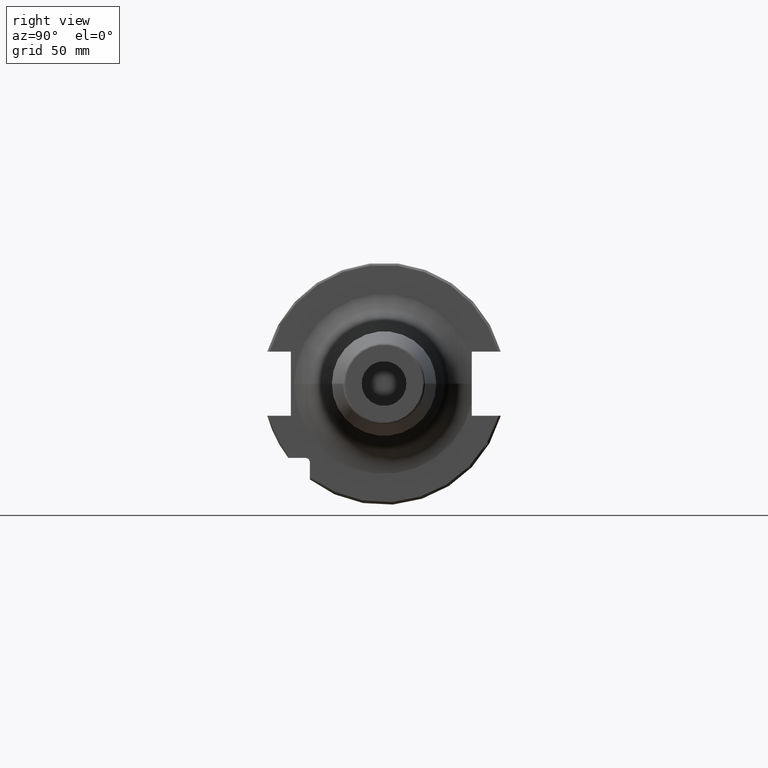
[diagram: clean part render]
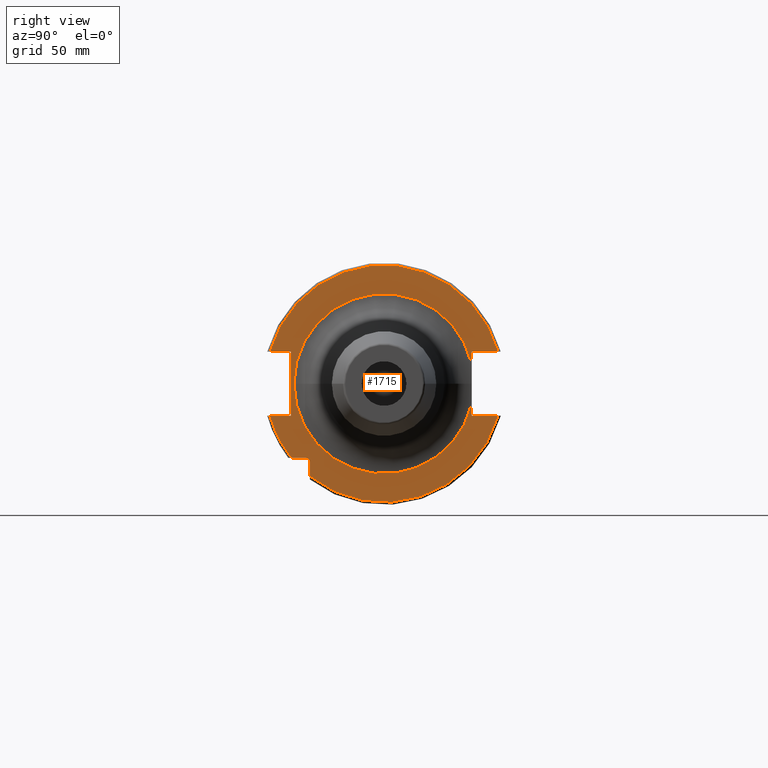
[diagram: same view with one face highlighted and labeled with its STEP entity id]
A machine part, right view. The second image highlights one B-rep face of the part: STEP entity #1715.
In plain terms, the highlighted planar face has unit normal (1, 0, 0).
Its self-contained STEP definition (entity closure, byte-faithful):
#126=CARTESIAN_POINT('',(1.905E1,0.E0,0.E0));
#127=DIRECTION('',(1.E0,0.E0,0.E0));
#128=DIRECTION('',(0.E0,-1.E0,0.E0));
#129=AXIS2_PLACEMENT_3D('',#126,#127,#128);
#131=DIRECTION('',(0.E0,8.971791458301E-6,-9.999999999598E-1));
#132=VECTOR('',#131,4.752175134589E0);
#133=CARTESIAN_POINT('',(1.905E1,3.529995736448E1,-8.147824865602E0));
#134=LINE('',#133,#132);
#135=DIRECTION('',(0.E0,-1.E0,0.E0));
#136=VECTOR('',#135,1.066149373389E1);
#137=CARTESIAN_POINT('',(1.905E1,4.596149373389E1,-1.29E1));
#138=LINE('',#137,#136);
#139=DIRECTION('',(0.E0,0.E0,1.E0));
#140=VECTOR('',#139,5.653810627237E0);
#141=CARTESIAN_POINT('',(1.905E1,-2.985E1,-3.725381062724E1));
#142=LINE('',#141,#140);
#143=DIRECTION('',(0.E0,-1.E0,0.E0));
#144=VECTOR('',#143,5.653810627237E0);
#145=CARTESIAN_POINT('',(1.905E1,-3.16E1,-2.985E1));
#146=LINE('',#145,#144);
#147=DIRECTION('',(0.E0,1.E0,0.E0));
#148=VECTOR('',#147,8.461493733886E0);
#149=CARTESIAN_POINT('',(1.905E1,-4.596149373389E1,-1.29E1));
#150=LINE('',#149,#148);
#151=DIRECTION('',(0.E0,0.E0,1.E0));
#152=VECTOR('',#151,2.58E1);
#153=CARTESIAN_POINT('',(1.905E1,-3.75E1,-1.29E1));
#154=LINE('',#153,#152);
#155=DIRECTION('',(0.E0,1.E0,0.E0));
#156=VECTOR('',#155,8.461493733886E0);
#157=CARTESIAN_POINT('',(1.905E1,-4.596149373389E1,1.29E1));
#158=LINE('',#157,#156);
#159=DIRECTION('',(0.E0,-1.E0,0.E0));
#160=VECTOR('',#159,1.066149373389E1);
#161=CARTESIAN_POINT('',(1.905E1,4.596149373389E1,1.29E1));
#162=LINE('',#161,#160);
#163=DIRECTION('',(0.E0,-9.216076785689E-6,-9.999999999575E-1));
#164=VECTOR('',#163,4.752066563707E0);
#165=CARTESIAN_POINT('',(1.905E1,3.53E1,1.29E1));
#166=LINE('',#165,#164);
#167=CARTESIAN_POINT('',(1.905E1,0.E0,0.E0));
#168=DIRECTION('',(1.E0,0.E0,0.E0));
#169=DIRECTION('',(0.E0,9.743845182936E-1,2.248884401426E-1));
#170=AXIS2_PLACEMENT_3D('',#167,#168,#169);
#609=CARTESIAN_POINT('',(1.905E1,-3.16E1,-3.16E1));
#610=DIRECTION('',(-1.E0,0.E0,0.E0));
#611=DIRECTION('',(0.E0,0.E0,1.E0));
#612=AXIS2_PLACEMENT_3D('',#609,#610,#611);
#644=CARTESIAN_POINT('',(1.905E1,0.E0,0.E0));
#645=DIRECTION('',(-1.E0,0.E0,0.E0));
#646=DIRECTION('',(0.E0,9.627964123359E-1,-2.702278083268E-1));
#647=AXIS2_PLACEMENT_3D('',#644,#645,#646);
#660=CARTESIAN_POINT('',(1.905E1,0.E0,0.E0));
#661=DIRECTION('',(-1.E0,0.E0,0.E0));
#662=DIRECTION('',(0.E0,-7.803888060170E-1,-6.252945797329E-1));
#663=AXIS2_PLACEMENT_3D('',#660,#661,#662);
#674=CARTESIAN_POINT('',(1.905E1,-3.725381062724E1,-2.985E1));
#1022=CARTESIAN_POINT('',(1.905E1,0.E0,0.E0));
#1023=DIRECTION('',(1.E0,0.E0,0.E0));
#1024=DIRECTION('',(0.E0,9.627964123359E-1,2.702278083268E-1));
#1025=AXIS2_PLACEMENT_3D('',#1022,#1023,#1024);
#1366=CARTESIAN_POINT('',(1.905E1,4.596149373389E1,1.29E1));
#1367=CARTESIAN_POINT('',(1.905E1,3.53E1,1.29E1));
#1368=VERTEX_POINT('',#1366);
#1369=VERTEX_POINT('',#1367);
#1370=CARTESIAN_POINT('',(1.905E1,4.596149373389E1,-1.29E1));
#1371=CARTESIAN_POINT('',(1.905E1,3.53E1,-1.29E1));
#1372=VERTEX_POINT('',#1370);
#1373=VERTEX_POINT('',#1371);
#1374=CARTESIAN_POINT('',(1.905E1,-4.596149373389E1,-1.29E1));
#1375=CARTESIAN_POINT('',(1.905E1,-3.75E1,-1.29E1));
#1376=VERTEX_POINT('',#1374);
#1377=VERTEX_POINT('',#1375);
#1378=CARTESIAN_POINT('',(1.905E1,-3.75E1,1.29E1));
#1379=VERTEX_POINT('',#1378);
#1380=CARTESIAN_POINT('',(1.905E1,-4.596149373389E1,1.29E1));
#1381=VERTEX_POINT('',#1380);
#1435=CARTESIAN_POINT('',(1.905E1,-2.985E1,-3.725381062724E1));
#1436=VERTEX_POINT('',#1435);
#1443=CARTESIAN_POINT('',(1.905E1,-3.16E1,-2.985E1));
#1444=CARTESIAN_POINT('',(1.905E1,-2.985E1,-3.16E1));
#1445=VERTEX_POINT('',#1443);
#1446=VERTEX_POINT('',#1444);
#1468=VERTEX_POINT('',#674);
#1490=CARTESIAN_POINT('',(1.905E1,-3.622816150469E1,-7.857457697077E-14));
#1491=CARTESIAN_POINT('',(1.905E1,3.530022776518E1,-8.146999799682E0));
#1492=VERTEX_POINT('',#1490);
#1493=VERTEX_POINT('',#1491);
#1498=CARTESIAN_POINT('',(1.905E1,3.530015969641E1,8.147294730023E0));
#1499=VERTEX_POINT('',#1498);
#1680=CARTESIAN_POINT('',(1.905E1,0.E0,0.E0));
#1681=DIRECTION('',(1.E0,0.E0,0.E0));
#1682=DIRECTION('',(0.E0,-1.E0,0.E0));
#1683=AXIS2_PLACEMENT_3D('',#1680,#1681,#1682);
#1684=PLANE('',#1683);
#1686=ORIENTED_EDGE('',*,*,#1685,.T.);
#1687=ORIENTED_EDGE('',*,*,#1658,.T.);
#1689=ORIENTED_EDGE('',*,*,#1688,.F.);
#1691=ORIENTED_EDGE('',*,*,#1690,.T.);
#1693=ORIENTED_EDGE('',*,*,#1692,.T.);
#1695=ORIENTED_EDGE('',*,*,#1694,.F.);
#1697=ORIENTED_EDGE('',*,*,#1696,.T.);
#1699=ORIENTED_EDGE('',*,*,#1698,.T.);
#1701=ORIENTED_EDGE('',*,*,#1700,.T.);
#1703=ORIENTED_EDGE('',*,*,#1702,.T.);
#1705=ORIENTED_EDGE('',*,*,#1704,.F.);
#1707=ORIENTED_EDGE('',*,*,#1706,.F.);
#1709=ORIENTED_EDGE('',*,*,#1708,.T.);
#1710=ORIENTED_EDGE('',*,*,#1664,.T.);
#1712=ORIENTED_EDGE('',*,*,#1711,.T.);
#1713=EDGE_LOOP('',(#1686,#1687,#1689,#1691,#1693,#1695,#1697,#1699,#1701,#1703,
#1705,#1707,#1709,#1710,#1712));
#1714=FACE_OUTER_BOUND('',#1713,.F.);
#1715=ADVANCED_FACE('',(#1714),#1684,.T.);
#130=CIRCLE('',#129,3.622816150469E1);
#171=CIRCLE('',#170,3.622816150469E1);
#613=CIRCLE('',#612,1.75E0);
#648=CIRCLE('',#647,4.77375E1);
#664=CIRCLE('',#663,4.77375E1);
#1026=CIRCLE('',#1025,4.77375E1);
#1658=EDGE_CURVE('',#1493,#1373,#134,.T.);
#1664=EDGE_CURVE('',#1369,#1499,#166,.T.);
#1685=EDGE_CURVE('',#1492,#1493,#130,.T.);
#1688=EDGE_CURVE('',#1372,#1373,#138,.T.);
#1690=EDGE_CURVE('',#1372,#1436,#648,.T.);
#1692=EDGE_CURVE('',#1436,#1446,#142,.T.);
#1694=EDGE_CURVE('',#1445,#1446,#613,.T.);
#1696=EDGE_CURVE('',#1445,#1468,#146,.T.);
#1698=EDGE_CURVE('',#1468,#1376,#664,.T.);
#1700=EDGE_CURVE('',#1376,#1377,#150,.T.);
#1702=EDGE_CURVE('',#1377,#1379,#154,.T.);
#1704=EDGE_CURVE('',#1381,#1379,#158,.T.);
#1706=EDGE_CURVE('',#1368,#1381,#1026,.T.);
#1708=EDGE_CURVE('',#1368,#1369,#162,.T.);
#1711=EDGE_CURVE('',#1499,#1492,#171,.T.);